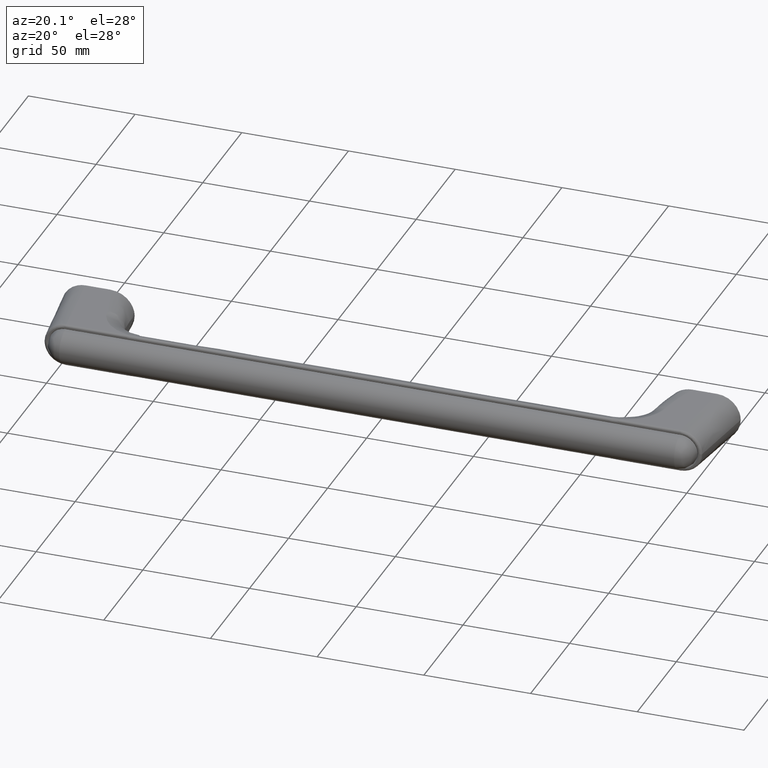
[diagram: clean part render]
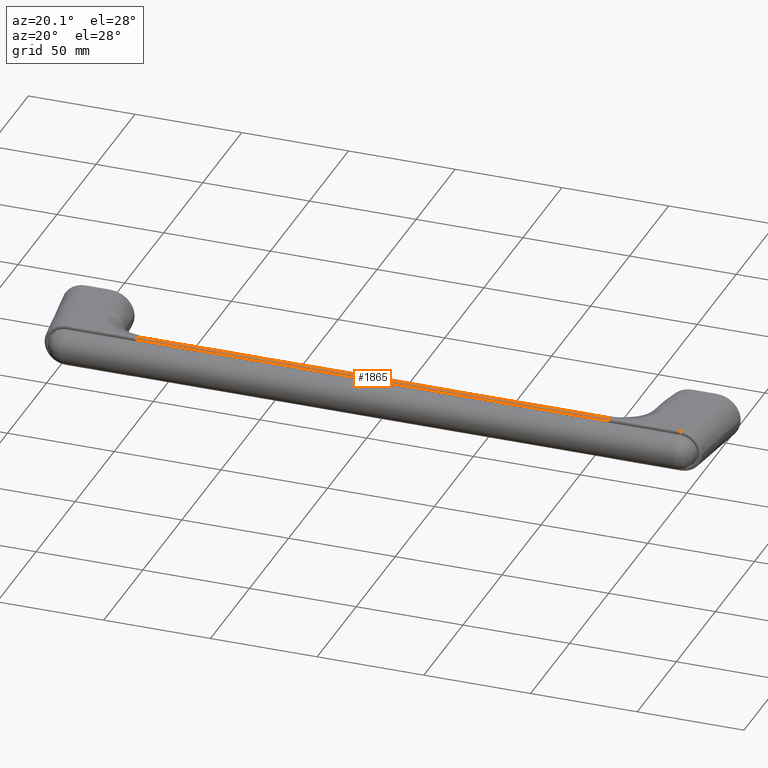
[diagram: same view with one face highlighted and labeled with its STEP entity id]
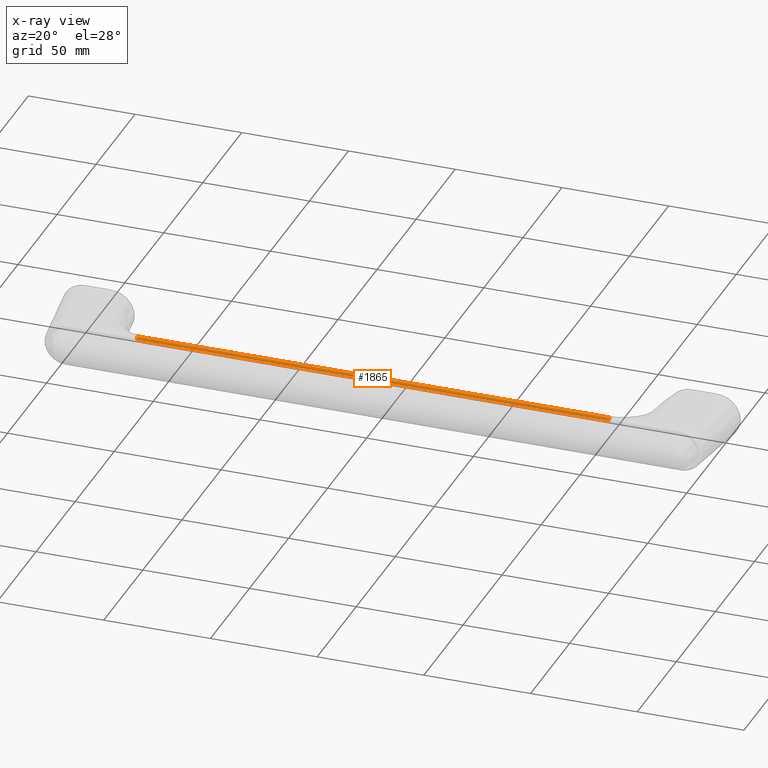
[diagram: x-ray of the same camera — body ghosted, the highlighted face saturated]
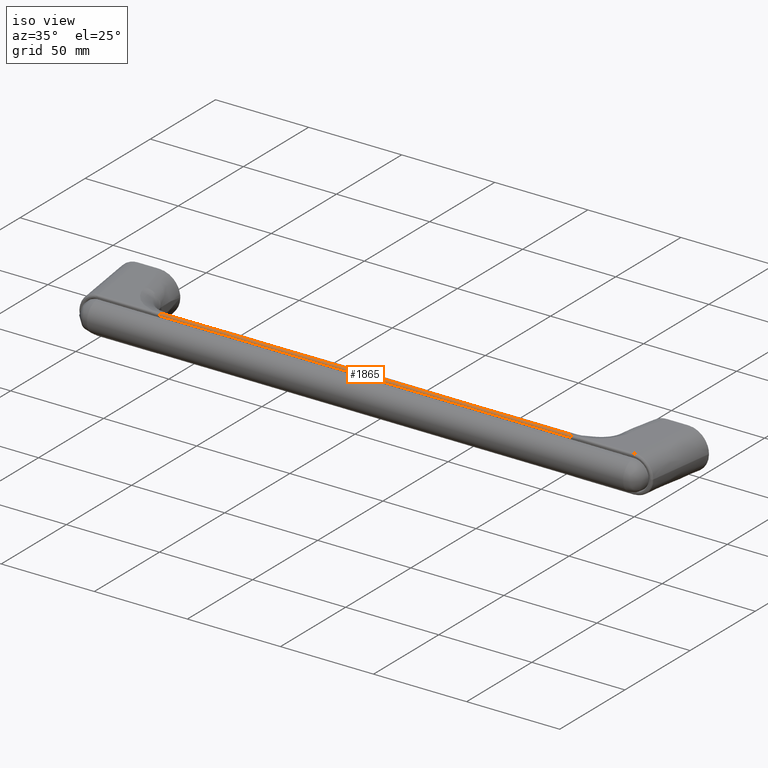
[diagram: same view with one face highlighted and labeled with its STEP entity id]
A machine part, auxiliary view. The second image highlights one B-rep face of the part: STEP entity #1865.
The next image is the same camera in x-ray: the body ghosted, the highlighted face saturated — about 0% of this face is hidden behind the body in this view.
A second angle (iso view) of the same face is appended — the face is thin or edge-on in the first view.
In plain terms, the highlighted face is a freeform B-spline surface patch.
Its self-contained STEP definition (entity closure, byte-faithful):
#1737=CARTESIAN_POINT('',(110.558716949461200,9.938079899998870,-9.111111111111311));
#1738=VERTEX_POINT('',#1737);
#1739=CARTESIAN_POINT('',(110.558716949461200,8.944271909998960,-8.000000000000199));
#1740=VERTEX_POINT('',#1739);
#1741=CARTESIAN_POINT('',(110.558716949461200,9.938079899998867,-9.111111111111311));
#1742=CARTESIAN_POINT('',(110.558716949461260,9.987770299498862,-8.666666666666865));
#1743=CARTESIAN_POINT('',(110.558716949461200,9.689627902498891,-8.333333333333533));
#1744=CARTESIAN_POINT('',(110.558716949461260,9.391485505498919,-8.000000000000197));
#1745=CARTESIAN_POINT('',(110.558716949461200,8.944271909998960,-8.000000000000197));
#1753=(BOUNDED_CURVE()B_SPLINE_CURVE(2,(#1741,#1742,#1743,#1744,#1745),.UNSPECIFIED.,.F.,.U.)B_SPLINE_CURVE_WITH_KNOTS((3,2,3),(0.0,0.500000000000000,1.0),.UNSPECIFIED.)CURVE()GEOMETRIC_REPRESENTATION_ITEM()RATIONAL_B_SPLINE_CURVE((1.0,0.912870929175277,1.0,0.912870929175277,1.0))REPRESENTATION_ITEM(''));
#1754=EDGE_CURVE('',#1738,#1740,#1753,.T.);
#1819=CARTESIAN_POINT('',(-116.086652796934300,8.935545374500586,-8.000038076936027));
#1820=CARTESIAN_POINT('',(116.224851193121100,8.935545374500586,-8.000038076936027));
#1821=CARTESIAN_POINT('',(-116.086652796934290,10.127253588769729,-7.989638196904942));
#1822=CARTESIAN_POINT('',(116.224851193121100,10.127253588769729,-7.989638196904942));
#1823=CARTESIAN_POINT('',(-116.086652796934300,9.930557511536193,-9.165047605860877));
#1824=CARTESIAN_POINT('',(116.224851193121100,9.930557511536193,-9.165047605860877));
#1832=(BOUNDED_SURFACE()B_SPLINE_SURFACE(1,2,((#1819,#1821,#1823),(#1820,#1822,#1824)),.UNSPECIFIED.,.F.,.F.,.U.)B_SPLINE_SURFACE_WITH_KNOTS((2,2),(3,3),(0.0,232.311503990055400),(0.0,1.0),.UNSPECIFIED.)GEOMETRIC_REPRESENTATION_ITEM()RATIONAL_B_SPLINE_SURFACE(((1.0,0.642787609686539,1.0),(1.0,0.642787609686539,1.0)))REPRESENTATION_ITEM('')SURFACE());
#1833=CARTESIAN_POINT('',(-110.558716949461200,9.938079899998870,-9.111111111111311));
#1834=VERTEX_POINT('',#1833);
#1835=CARTESIAN_POINT('',(-110.558716949461200,8.944271909998960,-8.000000000000199));
#1836=VERTEX_POINT('',#1835);
#1837=CARTESIAN_POINT('',(-110.558716949461200,9.938079899998867,-9.111111111111311));
#1838=CARTESIAN_POINT('',(-110.558716949461260,9.987770299498862,-8.666666666666865));
#1839=CARTESIAN_POINT('',(-110.558716949461200,9.689627902498891,-8.333333333333533));
#1840=CARTESIAN_POINT('',(-110.558716949461260,9.391485505498919,-8.000000000000197));
#1841=CARTESIAN_POINT('',(-110.558716949461200,8.944271909998960,-8.000000000000197));
#1849=(BOUNDED_CURVE()B_SPLINE_CURVE(2,(#1837,#1838,#1839,#1840,#1841),.UNSPECIFIED.,.F.,.U.)B_SPLINE_CURVE_WITH_KNOTS((3,2,3),(0.0,0.500000000000000,1.0),.UNSPECIFIED.)CURVE()GEOMETRIC_REPRESENTATION_ITEM()RATIONAL_B_SPLINE_CURVE((1.0,0.912870929175277,1.0,0.912870929175277,1.0))REPRESENTATION_ITEM(''));
#1850=EDGE_CURVE('',#1834,#1836,#1849,.T.);
#1851=ORIENTED_EDGE('',*,*,#1850,.T.);
#1852=CARTESIAN_POINT('',(110.558716949461200,8.944271909998960,-8.000000000000199));
#1853=CARTESIAN_POINT('',(-110.558716949461200,8.944271909998960,-8.000000000000199));
#1854=QUASI_UNIFORM_CURVE('',1,(#1852,#1853),.UNSPECIFIED.,.F.,.U.);
#1855=EDGE_CURVE('',#1740,#1836,#1854,.T.);
#1856=ORIENTED_EDGE('',*,*,#1855,.F.);
#1857=ORIENTED_EDGE('',*,*,#1754,.F.);
#1858=CARTESIAN_POINT('',(-110.558716949461200,9.938079899998870,-9.111111111111311));
#1859=CARTESIAN_POINT('',(110.558716949461200,9.938079899998870,-9.111111111111311));
#1860=QUASI_UNIFORM_CURVE('',1,(#1858,#1859),.UNSPECIFIED.,.F.,.U.);
#1861=EDGE_CURVE('',#1834,#1738,#1860,.T.);
#1862=ORIENTED_EDGE('',*,*,#1861,.F.);
#1863=EDGE_LOOP('',(#1851,#1856,#1857,#1862));
#1864=FACE_OUTER_BOUND('',#1863,.T.);
#1865=ADVANCED_FACE('',(#1864),#1832,.T.);